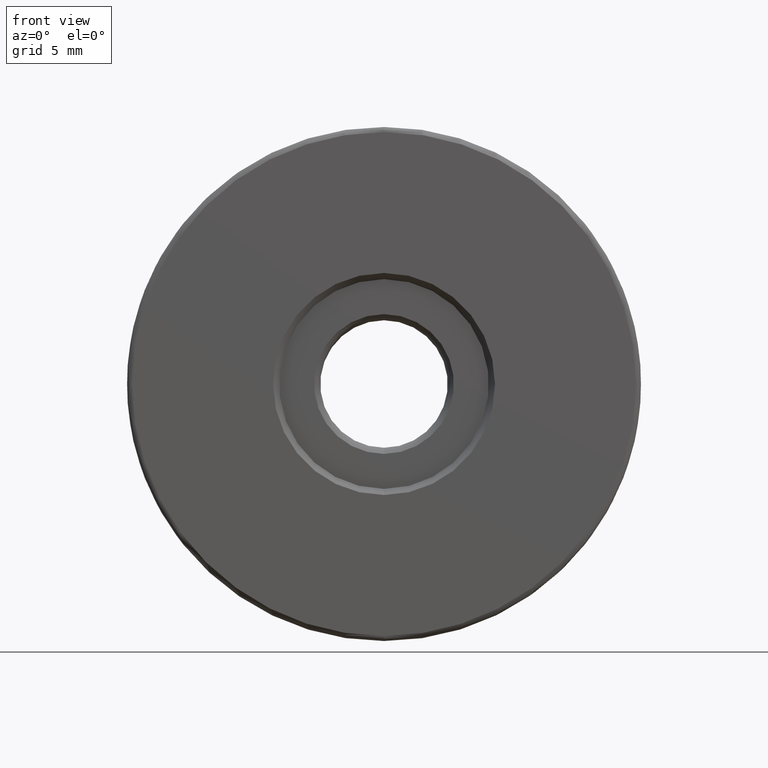
[diagram: clean part render]
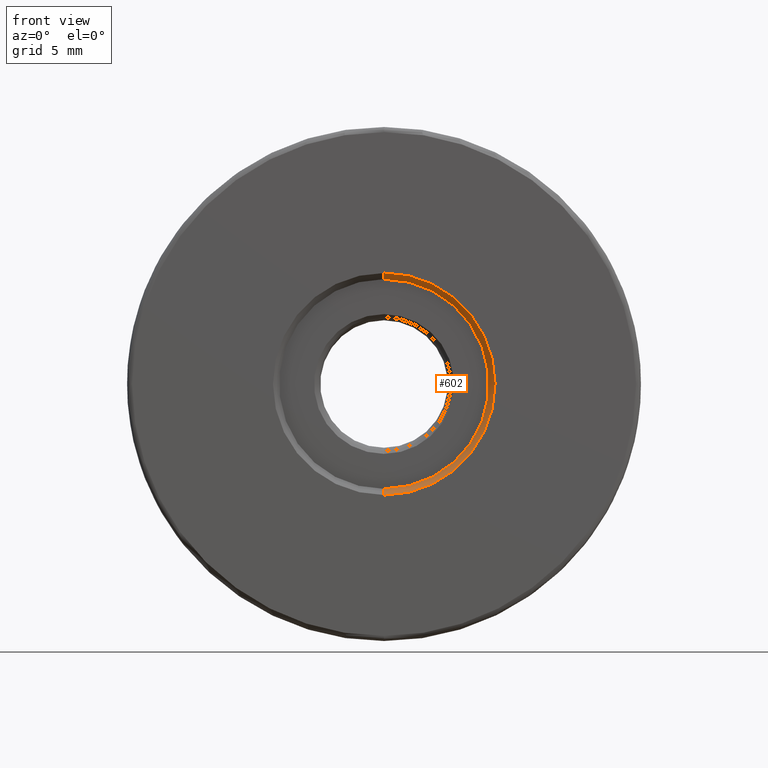
[diagram: same view with one face highlighted and labeled with its STEP entity id]
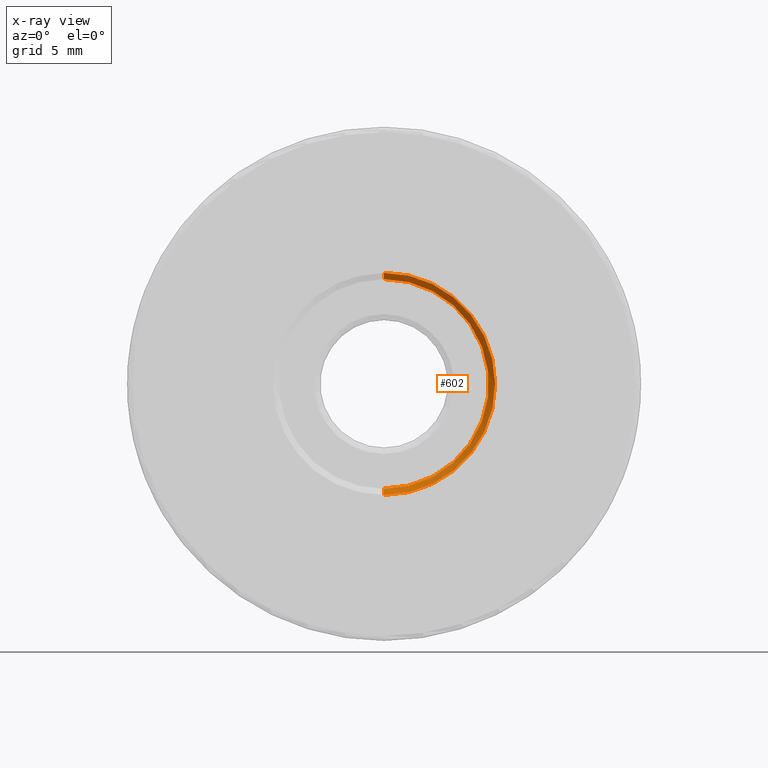
[diagram: x-ray of the same camera — body ghosted, the highlighted face saturated]
A machine part, front view. The second image highlights one B-rep face of the part: STEP entity #602.
The next image is the same camera in x-ray: the body ghosted, the highlighted face saturated — about 0% of this face is hidden behind the body in this view.
In plain terms, the highlighted conical surface has half-angle 45 deg.
Its self-contained STEP definition (entity closure, byte-faithful):
#1 = CIRCLE ( 'NONE', #274, 5.400000000000002132 ) ;
#42 = CIRCLE ( 'NONE', #526, 5.100000000000000533 ) ;
#44 = CARTESIAN_POINT ( 'NONE',  ( -4.682026255059963837, -3.294975976998275158, 30.10000000000000142 ) ) ;
#77 = DIRECTION ( 'NONE',  ( 0.0000000000000000000, 0.0000000000000000000, -1.000000000000000000 ) ) ;
#119 = ORIENTED_EDGE ( 'NONE', *, *, #585, .T. ) ;
#145 = DIRECTION ( 'NONE',  ( 0.0000000000000000000, 1.000000000000000000, 0.0000000000000000000 ) ) ;
#160 = VERTEX_POINT ( 'NONE', #544 ) ;
#169 = ORIENTED_EDGE ( 'NONE', *, *, #577, .T. ) ;
#180 = VERTEX_POINT ( 'NONE', #44 ) ;
#235 = DIRECTION ( 'NONE',  ( 8.659560562354895880E-17, -0.7071067811865505703, 0.7071067811865444641 ) ) ;
#238 = EDGE_CURVE ( 'NONE', #180, #553, #341, .T. ) ;
#248 = DIRECTION ( 'NONE',  ( 0.0000000000000000000, -0.7071067811865505703, -0.7071067811865444641 ) ) ;
#274 = AXIS2_PLACEMENT_3D ( 'NONE', #419, #145, #481 ) ;
#314 = AXIS2_PLACEMENT_3D ( 'NONE', #609, #468, #77 ) ;
#341 = LINE ( 'NONE', #454, #499 ) ;
#413 = DIRECTION ( 'NONE',  ( 0.0000000000000000000, 0.0000000000000000000, 1.000000000000000000 ) ) ;
#419 = CARTESIAN_POINT ( 'NONE',  ( -4.682026255059964726, -3.594975976998274980, 25.00000000000000000 ) ) ;
#427 = VECTOR ( 'NONE', #248, 1000.000000000000114 ) ;
#454 = CARTESIAN_POINT ( 'NONE',  ( -4.682026255059963837, -3.594975976998274980, 30.40000000000000213 ) ) ;
#456 = LINE ( 'NONE', #681, #427 ) ;
#460 = VERTEX_POINT ( 'NONE', #676 ) ;
#468 = DIRECTION ( 'NONE',  ( -0.0000000000000000000, -1.000000000000000000, -0.0000000000000000000 ) ) ;
#473 = ORIENTED_EDGE ( 'NONE', *, *, #238, .F. ) ;
#481 = DIRECTION ( 'NONE',  ( 0.0000000000000000000, 0.0000000000000000000, 1.000000000000000000 ) ) ;
#499 = VECTOR ( 'NONE', #235, 1000.000000000000114 ) ;
#518 = CARTESIAN_POINT ( 'NONE',  ( -4.682026255059963837, -3.594975976998274980, 30.40000000000000213 ) ) ;
#526 = AXIS2_PLACEMENT_3D ( 'NONE', #688, #579, #413 ) ;
#544 = CARTESIAN_POINT ( 'NONE',  ( -4.682026255059964726, -3.294975976998275158, 19.90000000000000213 ) ) ;
#553 = VERTEX_POINT ( 'NONE', #518 ) ;
#577 = EDGE_CURVE ( 'NONE', #160, #460, #456, .T. ) ;
#579 = DIRECTION ( 'NONE',  ( -0.0000000000000000000, 1.000000000000000000, -0.0000000000000000000 ) ) ;
#585 = EDGE_CURVE ( 'NONE', #180, #160, #42, .T. ) ;
#602 = ADVANCED_FACE ( 'NONE', ( #621 ), #628, .F. ) ;
#609 = CARTESIAN_POINT ( 'NONE',  ( -4.682026255059964726, -3.594975976998274980, 25.00000000000000000 ) ) ;
#621 = FACE_OUTER_BOUND ( 'NONE', #643, .T. ) ;
#626 = EDGE_CURVE ( 'NONE', #553, #460, #1, .T. ) ;
#628 = CONICAL_SURFACE ( 'NONE', #314, 5.400000000000002132, 0.7853981633974439491 ) ;
#643 = EDGE_LOOP ( 'NONE', ( #473, #119, #169, #707 ) ) ;
#676 = CARTESIAN_POINT ( 'NONE',  ( -4.682026255059964726, -3.594975976998274980, 19.59999999999999787 ) ) ;
#681 = CARTESIAN_POINT ( 'NONE',  ( -4.682026255059964726, -3.594975976998274980, 19.59999999999999787 ) ) ;
#688 = CARTESIAN_POINT ( 'NONE',  ( -4.682026255059964726, -3.294975976998275158, 25.00000000000000000 ) ) ;
#707 = ORIENTED_EDGE ( 'NONE', *, *, #626, .F. ) ;